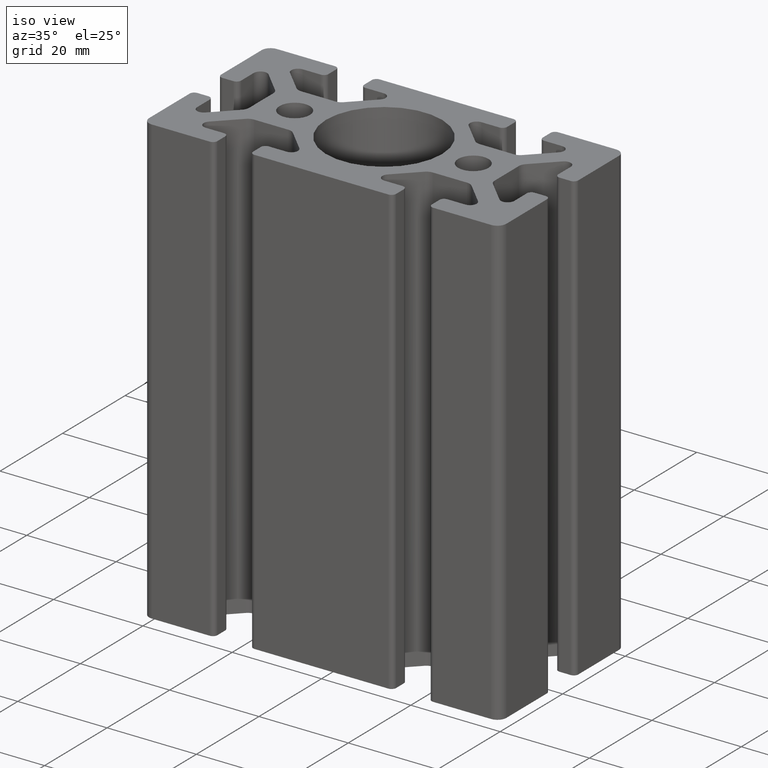
[diagram: clean part render]
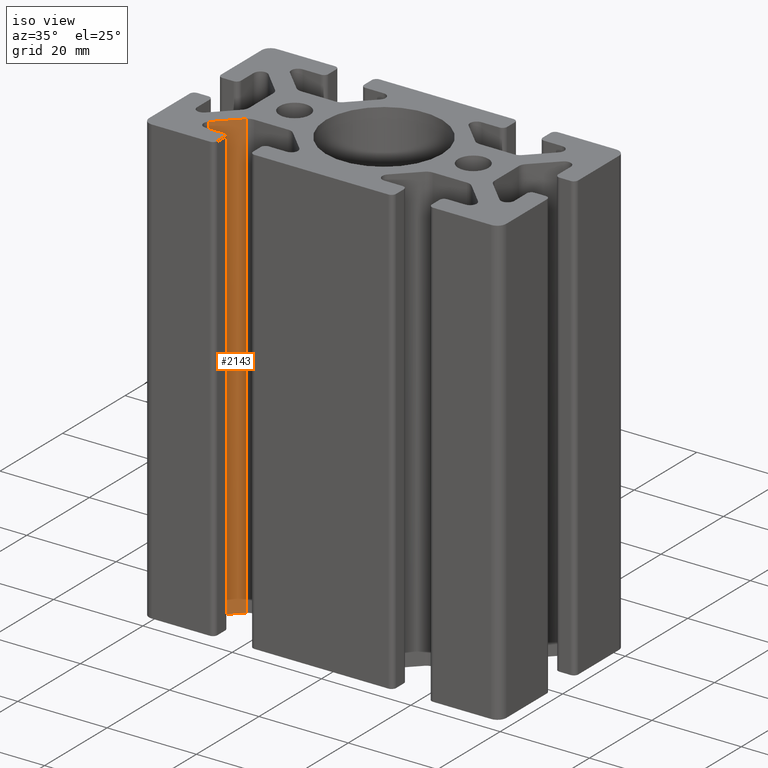
[diagram: same view with one face highlighted and labeled with its STEP entity id]
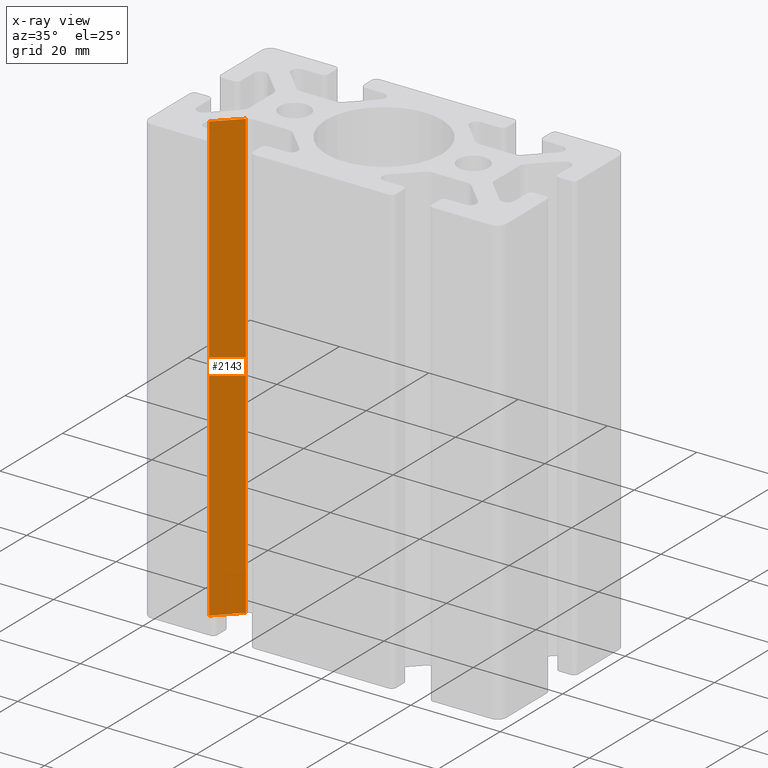
[diagram: x-ray of the same camera — body ghosted, the highlighted face saturated]
A machine part, iso view. The second image highlights one B-rep face of the part: STEP entity #2143.
The next image is the same camera in x-ray: the body ghosted, the highlighted face saturated — about 0% of this face is hidden behind the body in this view.
In plain terms, the highlighted planar face has unit normal (-0.7071, 0.7071, 0).
Its self-contained STEP definition (entity closure, byte-faithful):
#187=LINE('',#3583,#395);
#188=LINE('',#3587,#396);
#189=LINE('',#3589,#397);
#190=LINE('',#3590,#398);
#395=VECTOR('',#2930,100.);
#396=VECTOR('',#2935,6.86396103067893);
#397=VECTOR('',#2936,100.);
#398=VECTOR('',#2937,6.86396103067893);
#471=PLANE('',#2352);
#583=FACE_OUTER_BOUND('',#695,.T.);
#695=EDGE_LOOP('',(#1713,#1714,#1715,#1716));
#1021=VERTEX_POINT('',#3580);
#1022=VERTEX_POINT('',#3582);
#1023=VERTEX_POINT('',#3586);
#1024=VERTEX_POINT('',#3588);
#1314=EDGE_CURVE('',#1022,#1021,#187,.T.);
#1316=EDGE_CURVE('',#1023,#1021,#188,.T.);
#1317=EDGE_CURVE('',#1024,#1023,#189,.T.);
#1318=EDGE_CURVE('',#1022,#1024,#190,.T.);
#1713=ORIENTED_EDGE('',*,*,#1316,.F.);
#1714=ORIENTED_EDGE('',*,*,#1317,.F.);
#1715=ORIENTED_EDGE('',*,*,#1318,.F.);
#1716=ORIENTED_EDGE('',*,*,#1314,.T.);
#2143=ADVANCED_FACE('',(#583),#471,.F.);
#2352=AXIS2_PLACEMENT_3D('',#3585,#2933,#2934);
#2930=DIRECTION('',(0.,0.,1.));
#2933=DIRECTION('center_axis',(-0.707106781186546,0.707106781186549,0.));
#2934=DIRECTION('ref_axis',(-0.707106781186549,-0.707106781186546,0.));
#2935=DIRECTION('',(0.707106781186549,0.707106781186546,0.));
#2936=DIRECTION('',(0.,0.,1.));
#2937=DIRECTION('',(-0.707106781186549,-0.707106781186546,0.));
#3580=CARTESIAN_POINT('',(-25.2573593128807,-8.0857864376269,100.));
#3582=CARTESIAN_POINT('',(-25.2573593128807,-8.0857864376269,0.));
#3583=CARTESIAN_POINT('',(-25.2573593128807,-8.0857864376269,0.));
#3585=CARTESIAN_POINT('Origin',(-25.2573593128807,-8.0857864376269,0.));
#3586=CARTESIAN_POINT('',(-30.110912703474,-12.9393398282202,100.));
#3587=CARTESIAN_POINT('',(-16.9215728752538,0.250000000000001,100.));
#3588=CARTESIAN_POINT('',(-30.110912703474,-12.9393398282202,0.));
#3589=CARTESIAN_POINT('',(-30.110912703474,-12.9393398282202,0.));
#3590=CARTESIAN_POINT('',(-16.9215728752538,0.250000000000001,0.));